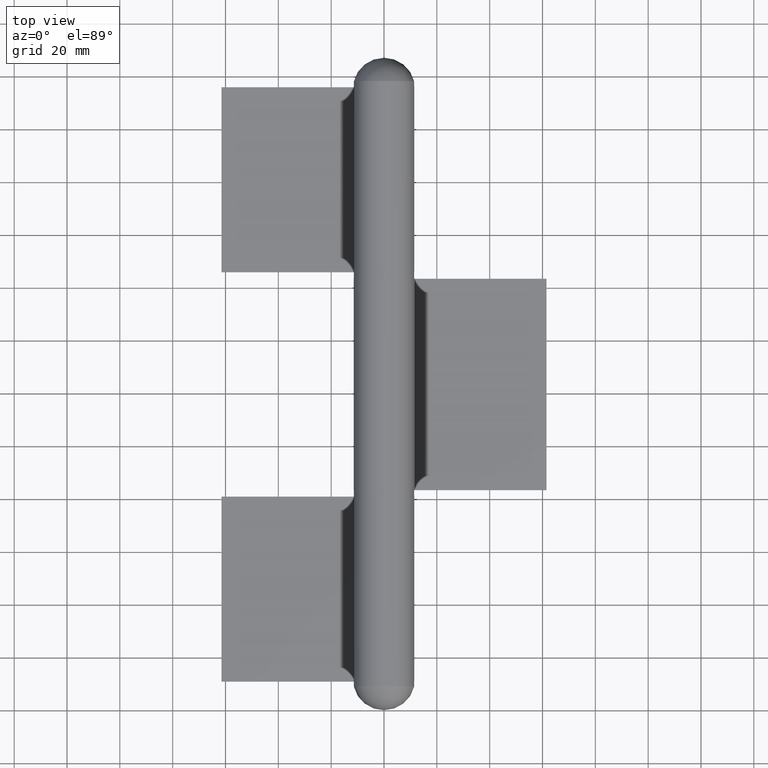
[diagram: clean part render]
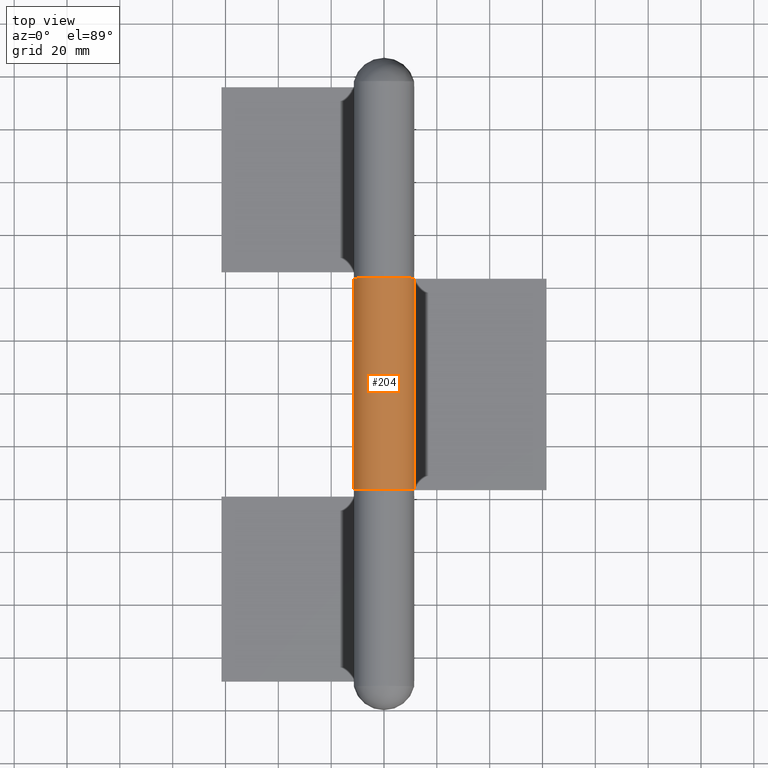
[diagram: same view with one face highlighted and labeled with its STEP entity id]
A machine part, top view. The second image highlights one B-rep face of the part: STEP entity #204.
In plain terms, the highlighted cylindrical surface (edge-blend (fillet) strip) has radius 11.5 mm, axis along (-0, 1, 0).
Its self-contained STEP definition (entity closure, byte-faithful):
#204 = ADVANCED_FACE ( 'NONE', ( #9532 ), #3934, .T. ) ;
#281 = VERTEX_POINT ( 'NONE', #1926 ) ;
#801 = CARTESIAN_POINT ( 'NONE',  ( -5.999999999999995559, 40.00000000000000000, 9.810708435174294806 ) ) ;
#914 = EDGE_CURVE ( 'NONE', #7767, #281, #5498, .T. ) ;
#1070 = AXIS2_PLACEMENT_3D ( 'NONE', #2548, #6425, #1582 ) ;
#1582 = DIRECTION ( 'NONE',  ( 0.000000000000000000, 0.000000000000000000, -1.000000000000000000 ) ) ;
#1676 = DIRECTION ( 'NONE',  ( -0.000000000000000000, -1.000000000000000000, -0.000000000000000000 ) ) ;
#1926 = CARTESIAN_POINT ( 'NONE',  ( -5.999999999999995559, -40.00000000000000000, 9.810708435174294806 ) ) ;
#2090 = DIRECTION ( 'NONE',  ( -0.000000000000000000, -1.000000000000000000, -0.000000000000000000 ) ) ;
#2179 = CARTESIAN_POINT ( 'NONE',  ( -5.999999999999995559, 40.00000000000000000, 9.810708435174294806 ) ) ;
#2263 = CARTESIAN_POINT ( 'NONE',  ( -11.49999999999999822, 40.00000000000000000, 2.112515728529185250E-15 ) ) ;
#2548 = CARTESIAN_POINT ( 'NONE',  ( 8.673617379884035472E-15, 40.00000000000000000, 0.000000000000000000 ) ) ;
#3293 = VECTOR ( 'NONE', #2090, 1000.000000000000000 ) ;
#3397 = DIRECTION ( 'NONE',  ( -0.000000000000000000, -1.000000000000000000, -0.000000000000000000 ) ) ;
#3934 = CYLINDRICAL_SURFACE ( 'NONE', #6435, 11.50000000000000711 ) ;
#4148 = ORIENTED_EDGE ( 'NONE', *, *, #11811, .F. ) ;
#4178 = ORIENTED_EDGE ( 'NONE', *, *, #914, .T. ) ;
#4947 = CARTESIAN_POINT ( 'NONE',  ( -11.49999999999999822, -40.00000000000000000, 2.112515728529185250E-15 ) ) ;
#5275 = VECTOR ( 'NONE', #3397, 1000.000000000000000 ) ;
#5498 = LINE ( 'NONE', #2179, #3293 ) ;
#5740 = LINE ( 'NONE', #8439, #5275 ) ;
#6185 = AXIS2_PLACEMENT_3D ( 'NONE', #7684, #7637, #7799 ) ;
#6425 = DIRECTION ( 'NONE',  ( 0.000000000000000000, 1.000000000000000000, -0.000000000000000000 ) ) ;
#6435 = AXIS2_PLACEMENT_3D ( 'NONE', #6692, #1676, #8623 ) ;
#6692 = CARTESIAN_POINT ( 'NONE',  ( 8.673617379884035472E-15, 40.00000000000000000, 0.000000000000000000 ) ) ;
#6807 = CIRCLE ( 'NONE', #6185, 11.50000000000000711 ) ;
#7637 = DIRECTION ( 'NONE',  ( 0.000000000000000000, 1.000000000000000000, -0.000000000000000000 ) ) ;
#7684 = CARTESIAN_POINT ( 'NONE',  ( 8.673617379884035472E-15, -40.00000000000000000, 0.000000000000000000 ) ) ;
#7767 = VERTEX_POINT ( 'NONE', #801 ) ;
#7799 = DIRECTION ( 'NONE',  ( 0.000000000000000000, 0.000000000000000000, -1.000000000000000000 ) ) ;
#8098 = ORIENTED_EDGE ( 'NONE', *, *, #12686, .F. ) ;
#8233 = CIRCLE ( 'NONE', #1070, 11.50000000000000711 ) ;
#8439 = CARTESIAN_POINT ( 'NONE',  ( -11.49999999999999822, 40.00000000000000000, 2.112515728529185250E-15 ) ) ;
#8623 = DIRECTION ( 'NONE',  ( 0.000000000000000000, 0.000000000000000000, -1.000000000000000000 ) ) ;
#9532 = FACE_OUTER_BOUND ( 'NONE', #11059, .T. ) ;
#9793 = VERTEX_POINT ( 'NONE', #4947 ) ;
#10473 = VERTEX_POINT ( 'NONE', #2263 ) ;
#11059 = EDGE_LOOP ( 'NONE', ( #12442, #8098, #4148, #4178 ) ) ;
#11811 = EDGE_CURVE ( 'NONE', #7767, #10473, #8233, .T. ) ;
#12442 = ORIENTED_EDGE ( 'NONE', *, *, #12482, .T. ) ;
#12482 = EDGE_CURVE ( 'NONE', #281, #9793, #6807, .T. ) ;
#12686 = EDGE_CURVE ( 'NONE', #10473, #9793, #5740, .T. ) ;